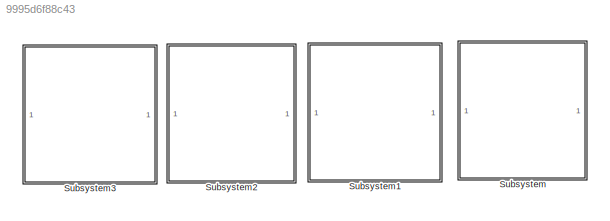
MODEL slx_9995d6f88c43
KIND model
CONFIG AbsTol = auto
CONFIG EnableMultiTasking = off
CONFIG FixedStep = auto
CONFIG MaxStep = 1
CONFIG MinStep = auto
CONFIG RelTol = 1e-3
CONFIG SampleTimeConstraint = Unconstrained
CONFIG Solver = VariableStepAuto
CONFIG SolverName = VariableStepAuto
CONFIG StartTime = 0.0
CONFIG StopTime = 500
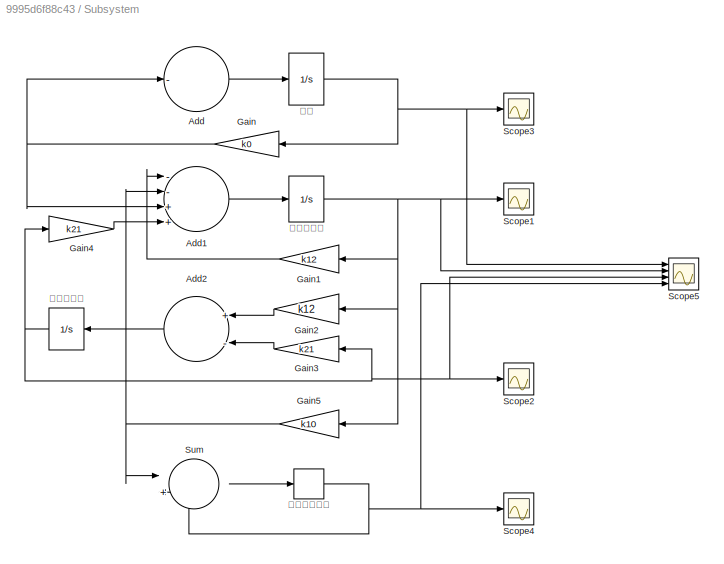
BLOCK [SubSystem] Subsystem
  AttributesFormatString = 二室模型口服给药
  Ports = []
  RequestExecContextInheritance = off
BLOCK [Sum] Subsystem/Add
  AttributesFormatString = 吸收
  InputSameDT = off
  Inputs = -
  OutDataTypeStr = Inherit: Inherit via internal rule
  Ports = [1, 1]
  SaturateOnIntegerOverflow = off
BLOCK [Sum] Subsystem/Add1
  AttributesFormatString = 中央室(一室)
  InputSameDT = off
  Inputs = --++
  OutDataTypeStr = Inherit: Inherit via internal rule
  Ports = [4, 1]
  SaturateOnIntegerOverflow = off
BLOCK [Sum] Subsystem/Add2
  AttributesFormatString = 周边室(二室)
  InputSameDT = off
  Inputs = +-
  OutDataTypeStr = Inherit: Inherit via internal rule
  Ports = [2, 1]
  SaturateOnIntegerOverflow = off
BLOCK [Gain] Subsystem/Gain
  Gain = k0
  OutDataTypeStr = Inherit: Inherit via internal rule
  ParamDataTypeStr = Inherit: Inherit via internal rule
  SaturateOnIntegerOverflow = off
BLOCK [Gain] Subsystem/Gain1
  Gain = k12
  OutDataTypeStr = Inherit: Inherit via internal rule
  ParamDataTypeStr = Inherit: Inherit via internal rule
  SaturateOnIntegerOverflow = off
BLOCK [Gain] Subsystem/Gain2
  Gain = k12
  OutDataTypeStr = Inherit: Inherit via internal rule
  ParamDataTypeStr = Inherit: Inherit via internal rule
  SaturateOnIntegerOverflow = off
BLOCK [Gain] Subsystem/Gain3
  Gain = k21
  OutDataTypeStr = Inherit: Inherit via internal rule
  ParamDataTypeStr = Inherit: Inherit via internal rule
  SaturateOnIntegerOverflow = off
BLOCK [Gain] Subsystem/Gain4
  Gain = k21
  OutDataTypeStr = Inherit: Inherit via internal rule
  ParamDataTypeStr = Inherit: Inherit via internal rule
  SaturateOnIntegerOverflow = off
BLOCK [Gain] Subsystem/Gain5
  Gain = k10
  OutDataTypeStr = Inherit: Inherit via internal rule
  ParamDataTypeStr = Inherit: Inherit via internal rule
  SaturateOnIntegerOverflow = off
BLOCK [Scope] Subsystem/Scope1
  AttributesFormatString = 血液系统
  Floating = off
  NumInputPorts = 1
  Ports = [1]
  ScopeSpecificationString = Simulink.scopes.TimeScopeBlockCfg('CurrentConfiguration', extmgr.ConfigurationSet(extmgr.Configuration('Core','General UI',true,'FigureColor',[1 1 1]),extmgr.Configuration('Core','Source UI',true),extmgr.Configuration('Sources','WiredSimulink',true,'DataLoggingVariableName','ScopeData1'),extmgr.Configuration('Visuals','Time Domain',true,'SerializedDisplays',{struct('MinYLimReal','-1.92345','MaxYLi...<+1547ch>
BLOCK [Scope] Subsystem/Scope2
  AttributesFormatString = 脑、肺、肝
  Floating = off
  NumInputPorts = 1
  Ports = [1]
  ScopeSpecificationString = Simulink.scopes.TimeScopeBlockCfg('CurrentConfiguration', extmgr.ConfigurationSet(extmgr.Configuration('Core','General UI',true,'FigureColor',[1 1 1]),extmgr.Configuration('Core','Source UI',true),extmgr.Configuration('Sources','WiredSimulink',true,'DataLoggingVariableName','ScopeData4'),extmgr.Configuration('Visuals','Time Domain',true,'SerializedDisplays',{struct('MinYLimReal','-2.46535','MaxYLi...<+1548ch>
BLOCK [Scope] Subsystem/Scope3
  AttributesFormatString = 胃
  Floating = off
  NumInputPorts = 1
  Ports = [1]
  ScopeSpecificationString = Simulink.scopes.TimeScopeBlockCfg('CurrentConfiguration', extmgr.ConfigurationSet(extmgr.Configuration('Core','General UI',true,'FigureColor',[1 1 1]),extmgr.Configuration('Core','Source UI',true),extmgr.Configuration('Sources','WiredSimulink',true),extmgr.Configuration('Visuals','Time Domain',true,'SerializedDisplays',{struct('MinYLimReal','-8.21606','MaxYLimReal','112.02401','YLabelReal','','Min...<+1509ch>
BLOCK [Scope] Subsystem/Scope4
  AttributesFormatString = 肾、小肠、大肠
  Floating = off
  NumInputPorts = 1
  Ports = [1]
  ScopeSpecificationString = Simulink.scopes.TimeScopeBlockCfg('CurrentConfiguration', extmgr.ConfigurationSet(extmgr.Configuration('Core','General UI',true,'FigureColor',[1 1 1]),extmgr.Configuration('Core','Source UI',true),extmgr.Configuration('Sources','WiredSimulink',true,'DataLoggingVariableName','ScopeData1'),extmgr.Configuration('Visuals','Time Domain',true,'SerializedDisplays',{struct('MinYLimReal','-9.74011','MaxYLi...<+1514ch>
BLOCK [Scope] Subsystem/Scope5
  AttributesFormatString = 整合
  Floating = off
  NumInputPorts = 4
  Ports = [4]
  ScopeSpecificationString = Simulink.scopes.TimeScopeBlockCfg('CurrentConfiguration', extmgr.ConfigurationSet(extmgr.Configuration('Core','General UI',true,'FigureColor',[1 1 1]),extmgr.Configuration('Core','Source UI',true),extmgr.Configuration('Sources','WiredSimulink',true,'DataLoggingVariableName','ScopeData1'),extmgr.Configuration('Visuals','Time Domain',true,'SerializedDisplays',{struct('MinYLimReal','-12.5','MaxYLimRe...<+1523ch>
BLOCK [Sum] Subsystem/Sum
  AttributesFormatString = 排泄、代谢
  IconShape = round
  InputSameDT = off
  Inputs = |++
  OutDataTypeStr = Inherit: Inherit via internal rule
  Ports = [2, 1]
  SaturateOnIntegerOverflow = off
BLOCK [Integrator] Subsystem/吸收
  InitialCondition = 100
  Ports = [1, 1]
BLOCK [Integrator] Subsystem/药物在内脏
  Ports = [1, 1]
BLOCK [Integrator] Subsystem/药物在血液
  Ports = [1, 1]
BLOCK [Memory] Subsystem/药物累积代谢
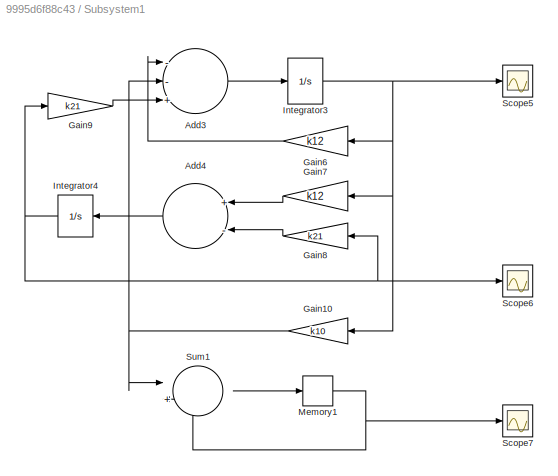
BLOCK [SubSystem] Subsystem1
  AttributesFormatString = 二室模型注射给药
  Ports = []
  RequestExecContextInheritance = off
BLOCK [Sum] Subsystem1/Add3
  InputSameDT = off
  Inputs = --+
  OutDataTypeStr = Inherit: Inherit via internal rule
  Ports = [3, 1]
  SaturateOnIntegerOverflow = off
BLOCK [Sum] Subsystem1/Add4
  InputSameDT = off
  Inputs = +-
  OutDataTypeStr = Inherit: Inherit via internal rule
  Ports = [2, 1]
  SaturateOnIntegerOverflow = off
BLOCK [Gain] Subsystem1/Gain10
  Gain = k10
  OutDataTypeStr = Inherit: Inherit via internal rule
  ParamDataTypeStr = Inherit: Inherit via internal rule
  SaturateOnIntegerOverflow = off
BLOCK [Gain] Subsystem1/Gain6
  Gain = k12
  OutDataTypeStr = Inherit: Inherit via internal rule
  ParamDataTypeStr = Inherit: Inherit via internal rule
  SaturateOnIntegerOverflow = off
BLOCK [Gain] Subsystem1/Gain7
  Gain = k12
  OutDataTypeStr = Inherit: Inherit via internal rule
  ParamDataTypeStr = Inherit: Inherit via internal rule
  SaturateOnIntegerOverflow = off
BLOCK [Gain] Subsystem1/Gain8
  Gain = k21
  OutDataTypeStr = Inherit: Inherit via internal rule
  ParamDataTypeStr = Inherit: Inherit via internal rule
  SaturateOnIntegerOverflow = off
BLOCK [Gain] Subsystem1/Gain9
  Gain = k21
  OutDataTypeStr = Inherit: Inherit via internal rule
  ParamDataTypeStr = Inherit: Inherit via internal rule
  SaturateOnIntegerOverflow = off
BLOCK [Integrator] Subsystem1/Integrator3
  InitialCondition = 100
  Ports = [1, 1]
BLOCK [Integrator] Subsystem1/Integrator4
  Ports = [1, 1]
BLOCK [Memory] Subsystem1/Memory1
BLOCK [Scope] Subsystem1/Scope5
  Floating = off
  NumInputPorts = 1
  Ports = [1]
  ScopeSpecificationString = Simulink.scopes.TimeScopeBlockCfg('CurrentConfiguration', extmgr.ConfigurationSet(extmgr.Configuration('Core','General UI',true,'FigureColor',[1 1 1]),extmgr.Configuration('Core','Source UI',true),extmgr.Configuration('Sources','WiredSimulink',true,'DataLoggingVariableName','ScopeData1'),extmgr.Configuration('Visuals','Time Domain',true,'SerializedDisplays',{struct('MinYLimReal','-12.36673','MaxYL...<+1504ch>
BLOCK [Scope] Subsystem1/Scope6
  Floating = off
  NumInputPorts = 1
  Ports = [1]
  ScopeSpecificationString = Simulink.scopes.TimeScopeBlockCfg('CurrentConfiguration', extmgr.ConfigurationSet(extmgr.Configuration('Core','General UI',true,'FigureColor',[1 1 1]),extmgr.Configuration('Core','Source UI',true),extmgr.Configuration('Sources','WiredSimulink',true,'DataLoggingVariableName','ScopeData2'),extmgr.Configuration('Visuals','Time Domain',true,'SerializedDisplays',{struct('MinYLimReal','-4.36412','MaxYLi...<+1498ch>
BLOCK [Scope] Subsystem1/Scope7
  Floating = off
  NumInputPorts = 1
  Ports = [1]
  ScopeSpecificationString = Simulink.scopes.TimeScopeBlockCfg('CurrentConfiguration', extmgr.ConfigurationSet(extmgr.Configuration('Core','General UI',true,'FigureColor',[1 1 1]),extmgr.Configuration('Core','Source UI',true),extmgr.Configuration('Sources','WiredSimulink',true,'DataLoggingVariableName','ScopeData3'),extmgr.Configuration('Visuals','Time Domain',true,'SerializedDisplays',{struct('MinYLimReal','-12.66983','MaxYL...<+1500ch>
BLOCK [Sum] Subsystem1/Sum1
  AttributesFormatString = 排泄、代谢
  IconShape = round
  InputSameDT = off
  Inputs = |++
  OutDataTypeStr = Inherit: Inherit via internal rule
  Ports = [2, 1]
  SaturateOnIntegerOverflow = off
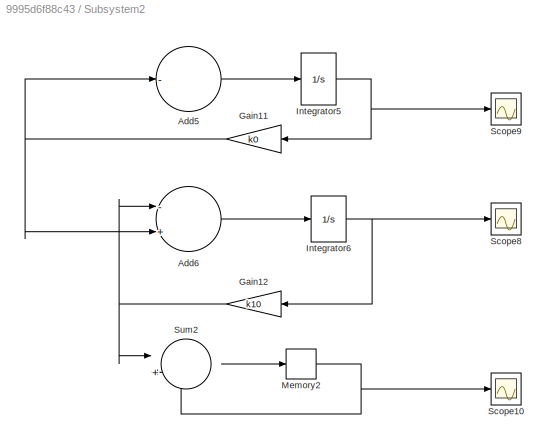
BLOCK [SubSystem] Subsystem2
  AttributesFormatString = 一室模型口服给药
  Ports = []
  RequestExecContextInheritance = off
BLOCK [Sum] Subsystem2/Add5
  InputSameDT = off
  Inputs = -
  OutDataTypeStr = Inherit: Inherit via internal rule
  Ports = [1, 1]
  SaturateOnIntegerOverflow = off
BLOCK [Sum] Subsystem2/Add6
  InputSameDT = off
  Inputs = -+
  OutDataTypeStr = Inherit: Inherit via internal rule
  Ports = [2, 1]
  SaturateOnIntegerOverflow = off
BLOCK [Gain] Subsystem2/Gain11
  Gain = k0
  OutDataTypeStr = Inherit: Inherit via internal rule
  ParamDataTypeStr = Inherit: Inherit via internal rule
  SaturateOnIntegerOverflow = off
BLOCK [Gain] Subsystem2/Gain12
  Gain = k10
  OutDataTypeStr = Inherit: Inherit via internal rule
  ParamDataTypeStr = Inherit: Inherit via internal rule
  SaturateOnIntegerOverflow = off
BLOCK [Integrator] Subsystem2/Integrator5
  InitialCondition = 100
  Ports = [1, 1]
BLOCK [Integrator] Subsystem2/Integrator6
  Ports = [1, 1]
BLOCK [Memory] Subsystem2/Memory2
BLOCK [Scope] Subsystem2/Scope10
  AttributesFormatString = 肾、小肠、大肠
  Floating = off
  NumInputPorts = 1
  Ports = [1]
  ScopeSpecificationString = Simulink.scopes.TimeScopeBlockCfg('CurrentConfiguration', extmgr.ConfigurationSet(extmgr.Configuration('Core','General UI',true,'FigureColor',[1 1 1]),extmgr.Configuration('Core','Source UI',true),extmgr.Configuration('Sources','WiredSimulink',true,'DataLoggingVariableName','ScopeData7'),extmgr.Configuration('Visuals','Time Domain',true,'SerializedDisplays',{struct('MinYLimReal','-12.48785','MaxYL...<+1530ch>
BLOCK [Scope] Subsystem2/Scope8
  Floating = off
  NumInputPorts = 1
  Ports = [1]
  ScopeSpecificationString = Simulink.scopes.TimeScopeBlockCfg('CurrentConfiguration', extmgr.ConfigurationSet(extmgr.Configuration('Core','General UI',true,'FigureColor',[1 1 1]),extmgr.Configuration('Core','Source UI',true),extmgr.Configuration('Sources','WiredSimulink',true,'DataLoggingVariableName','ScopeData5'),extmgr.Configuration('Visuals','Time Domain',true,'SerializedDisplays',{struct('MinYLimReal','-2.87399','MaxYLi...<+1527ch>
BLOCK [Scope] Subsystem2/Scope9
  Floating = off
  NumInputPorts = 1
  Ports = [1]
  ScopeSpecificationString = Simulink.scopes.TimeScopeBlockCfg('CurrentConfiguration', extmgr.ConfigurationSet(extmgr.Configuration('Core','General UI',true,'FigureColor',[1 1 1]),extmgr.Configuration('Core','Source UI',true),extmgr.Configuration('Sources','WiredSimulink',true,'DataLoggingVariableName','ScopeData6'),extmgr.Configuration('Visuals','Time Domain',true,'SerializedDisplays',{struct('MinYLimReal','-12.44169','MaxYL...<+1533ch>
BLOCK [Sum] Subsystem2/Sum2
  AttributesFormatString = 排泄、代谢
  IconShape = round
  InputSameDT = off
  Inputs = |++
  OutDataTypeStr = Inherit: Inherit via internal rule
  Ports = [2, 1]
  SaturateOnIntegerOverflow = off
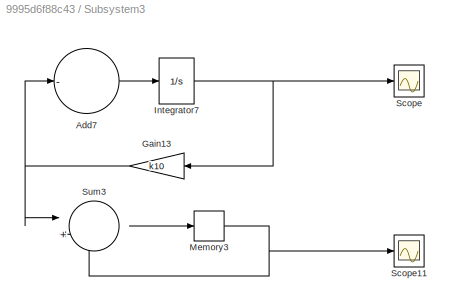
BLOCK [SubSystem] Subsystem3
  AttributesFormatString = 一室模型注射给药
  Ports = []
  RequestExecContextInheritance = off
BLOCK [Sum] Subsystem3/Add7
  InputSameDT = off
  Inputs = -
  OutDataTypeStr = Inherit: Inherit via internal rule
  Ports = [1, 1]
  SaturateOnIntegerOverflow = off
BLOCK [Gain] Subsystem3/Gain13
  Gain = k10
  OutDataTypeStr = Inherit: Inherit via internal rule
  ParamDataTypeStr = Inherit: Inherit via internal rule
  SaturateOnIntegerOverflow = off
BLOCK [Integrator] Subsystem3/Integrator7
  InitialCondition = 100
  Ports = [1, 1]
BLOCK [Memory] Subsystem3/Memory3
BLOCK [Scope] Subsystem3/Scope
  Floating = off
  NumInputPorts = 1
  Ports = [1]
  ScopeSpecificationString = Simulink.scopes.TimeScopeBlockCfg('CurrentConfiguration', extmgr.ConfigurationSet(extmgr.Configuration('Core','General UI',true),extmgr.Configuration('Core','Source UI',true),extmgr.Configuration('Sources','WiredSimulink',true,'DataLoggingVariableName','ScopeData8'),extmgr.Configuration('Visuals','Time Domain',true,'SerializedDisplays',{struct('MinYLimReal','-12.5','MaxYLimReal','112.5','YLabelRea...<+1375ch>
BLOCK [Scope] Subsystem3/Scope11
  AttributesFormatString = 肾、小肠、大肠
  Floating = off
  NumInputPorts = 1
  Ports = [1]
  ScopeSpecificationString = Simulink.scopes.TimeScopeBlockCfg('CurrentConfiguration', extmgr.ConfigurationSet(extmgr.Configuration('Core','General UI',true,'FigureColor',[1 1 1]),extmgr.Configuration('Core','Source UI',true),extmgr.Configuration('Sources','WiredSimulink',true,'DataLoggingVariableName','ScopeData9'),extmgr.Configuration('Visuals','Time Domain',true,'SerializedDisplays',{struct('MinYLimReal','-12.7175','MaxYLi...<+1521ch>
BLOCK [Sum] Subsystem3/Sum3
  AttributesFormatString = 排泄、代谢
  IconShape = round
  InputSameDT = off
  Inputs = |++
  OutDataTypeStr = Inherit: Inherit via internal rule
  Ports = [2, 1]
  SaturateOnIntegerOverflow = off
LINE Subsystem/Add1:1 -> Subsystem/药物在血液:1
LINE Subsystem/Add2:1 -> Subsystem/药物在内脏:1
LINE Subsystem/Add:1 -> Subsystem/吸收:1
LINE Subsystem/Gain1:1 -> Subsystem/Add1:1
LINE Subsystem/Gain2:1 -> Subsystem/Add2:1
LINE Subsystem/Gain3:1 -> Subsystem/Add2:2
LINE Subsystem/Gain4:1 -> Subsystem/Add1:4
NET Subsystem/Gain5:1 -> Subsystem/Add1:2, Subsystem/Sum:1
NET Subsystem/Gain:1 -> Subsystem/Add1:3, Subsystem/Add:1
LINE Subsystem/Sum:1 -> Subsystem/药物累积代谢:1
NET Subsystem/吸收:1 -> Subsystem/Gain:1, Subsystem/Scope3:1, Subsystem/Scope5:1
NET Subsystem/药物在内脏:1 -> Subsystem/Gain3:1, Subsystem/Gain4:1, Subsystem/Scope2:1, Subsystem/Scope5:3
NET Subsystem/药物在血液:1 -> Subsystem/Gain1:1, Subsystem/Gain2:1, Subsystem/Gain5:1, Subsystem/Scope1:1, Subsystem/Scope5:2
NET Subsystem/药物累积代谢:1 -> Subsystem/Scope4:1, Subsystem/Scope5:4, Subsystem/Sum:2
LINE Subsystem1/Add3:1 -> Subsystem1/Integrator3:1
LINE Subsystem1/Add4:1 -> Subsystem1/Integrator4:1
NET Subsystem1/Gain10:1 -> Subsystem1/Add3:2, Subsystem1/Sum1:1
LINE Subsystem1/Gain6:1 -> Subsystem1/Add3:1
LINE Subsystem1/Gain7:1 -> Subsystem1/Add4:1
LINE Subsystem1/Gain8:1 -> Subsystem1/Add4:2
LINE Subsystem1/Gain9:1 -> Subsystem1/Add3:3
NET Subsystem1/Integrator3:1 -> Subsystem1/Gain10:1, Subsystem1/Gain6:1, Subsystem1/Gain7:1, Subsystem1/Scope5:1
NET Subsystem1/Integrator4:1 -> Subsystem1/Gain8:1, Subsystem1/Gain9:1, Subsystem1/Scope6:1
NET Subsystem1/Memory1:1 -> Subsystem1/Scope7:1, Subsystem1/Sum1:2
LINE Subsystem1/Sum1:1 -> Subsystem1/Memory1:1
LINE Subsystem2/Add5:1 -> Subsystem2/Integrator5:1
LINE Subsystem2/Add6:1 -> Subsystem2/Integrator6:1
NET Subsystem2/Gain11:1 -> Subsystem2/Add5:1, Subsystem2/Add6:2
NET Subsystem2/Gain12:1 -> Subsystem2/Add6:1, Subsystem2/Sum2:1
NET Subsystem2/Integrator5:1 -> Subsystem2/Gain11:1, Subsystem2/Scope9:1
NET Subsystem2/Integrator6:1 -> Subsystem2/Gain12:1, Subsystem2/Scope8:1
NET Subsystem2/Memory2:1 -> Subsystem2/Scope10:1, Subsystem2/Sum2:2
LINE Subsystem2/Sum2:1 -> Subsystem2/Memory2:1
LINE Subsystem3/Add7:1 -> Subsystem3/Integrator7:1
NET Subsystem3/Gain13:1 -> Subsystem3/Add7:1, Subsystem3/Sum3:1
NET Subsystem3/Integrator7:1 -> Subsystem3/Gain13:1, Subsystem3/Scope:1
NET Subsystem3/Memory3:1 -> Subsystem3/Scope11:1, Subsystem3/Sum3:2
LINE Subsystem3/Sum3:1 -> Subsystem3/Memory3:1
note: NET lines group one-source signal fan-out (src -> all destinations, sorted); 1:1 wires keep LINE
